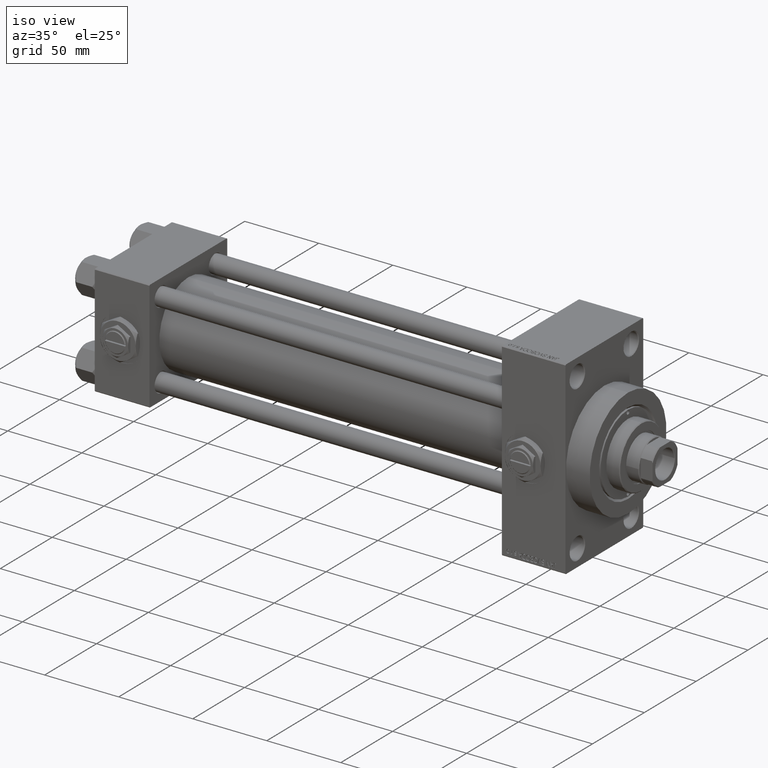
[diagram: clean part render]
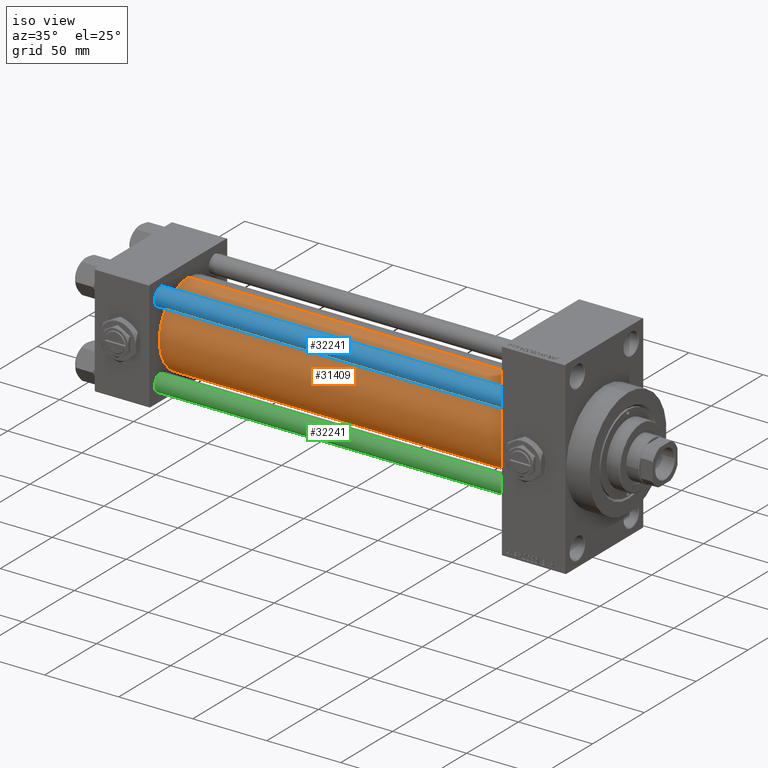
[diagram: same view with three faces highlighted in distinct colors, each labeled with its STEP entity id]
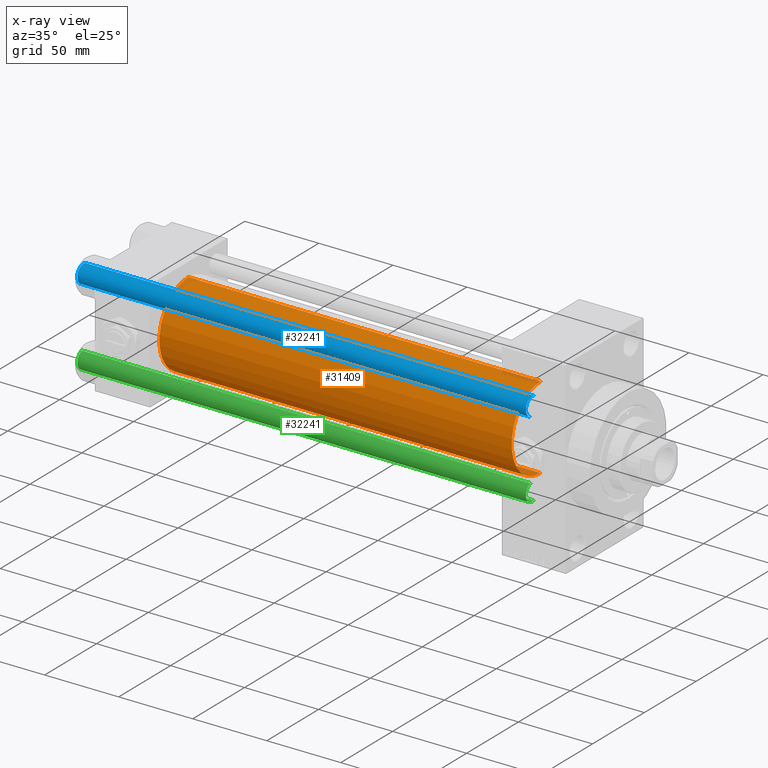
[diagram: x-ray of the same camera — body ghosted, the three highlighted faces saturated]
A machine part, iso view with three faces highlighted in distinct colors.
The next image is the same camera in x-ray (body ghosted, the three faces saturated) — at least one of them is partly hidden behind the body in this view.
Their STEP definitions:

[orange] entity #31409 — the highlighted cylindrical surface (partial cylindrical patch) has radius 28 mm, axis along (-1, -0, -0).
#3281 = CARTESIAN_POINT ( 'NONE',  ( 274.9999999999999432, 8.269258236473784371E-16, -28.00000000000000000 ) ) ;
#3526 = ORIENTED_EDGE ( 'NONE', *, *, #23756, .F. ) ;
#4028 = CARTESIAN_POINT ( 'NONE',  ( 274.9999999999999432, -2.602085213965210642E-15, 28.00000000000000000 ) ) ;
#4494 = LINE ( 'NONE', #40104, #48496 ) ;
#5468 = DIRECTION ( 'NONE',  ( 0.000000000000000000, 0.000000000000000000, 1.000000000000000000 ) ) ;
#7705 = CARTESIAN_POINT ( 'NONE',  ( 274.9999999999999432, -2.602085213965210642E-15, 28.00000000000000000 ) ) ;
#7950 = ORIENTED_EDGE ( 'NONE', *, *, #12488, .F. ) ;
#9122 = VERTEX_POINT ( 'NONE', #3281 ) ;
#12488 = EDGE_CURVE ( 'NONE', #9122, #24594, #4494, .T. ) ;
#12639 = CYLINDRICAL_SURFACE ( 'NONE', #30836, 28.00000000000000000 ) ;
#12697 = VERTEX_POINT ( 'NONE', #7705 ) ;
#12816 = CARTESIAN_POINT ( 'NONE',  ( 37.00000000000000711, -2.602085213965210642E-15, 0.000000000000000000 ) ) ;
#12817 = EDGE_CURVE ( 'NONE', #29416, #24594, #41125, .T. ) ;
#16282 = DIRECTION ( 'NONE',  ( -1.000000000000000000, -0.000000000000000000, -0.000000000000000000 ) ) ;
#19024 = AXIS2_PLACEMENT_3D ( 'NONE', #12816, #28428, #40233 ) ;
#19929 = VECTOR ( 'NONE', #34770, 1000.000000000000000 ) ;
#20837 = DIRECTION ( 'NONE',  ( -1.000000000000000000, -0.000000000000000000, -0.000000000000000000 ) ) ;
#21063 = EDGE_CURVE ( 'NONE', #12697, #29416, #31438, .T. ) ;
#23137 = CARTESIAN_POINT ( 'NONE',  ( 37.00000000000000711, -2.602085213965210642E-15, 28.00000000000000000 ) ) ;
#23756 = EDGE_CURVE ( 'NONE', #12697, #9122, #29855, .T. ) ;
#24594 = VERTEX_POINT ( 'NONE', #35510 ) ;
#26558 = AXIS2_PLACEMENT_3D ( 'NONE', #37547, #44501, #32441 ) ;
#28428 = DIRECTION ( 'NONE',  ( 1.000000000000000000, -0.000000000000000000, 0.000000000000000000 ) ) ;
#29258 = ORIENTED_EDGE ( 'NONE', *, *, #21063, .T. ) ;
#29416 = VERTEX_POINT ( 'NONE', #23137 ) ;
#29855 = CIRCLE ( 'NONE', #26558, 28.00000000000000000 ) ;
#30836 = AXIS2_PLACEMENT_3D ( 'NONE', #33106, #20837, #5468 ) ;
#31409 = ADVANCED_FACE ( 'NONE', ( #35941 ), #12639, .T. ) ;
#31438 = LINE ( 'NONE', #4028, #19929 ) ;
#32441 = DIRECTION ( 'NONE',  ( 0.000000000000000000, 0.000000000000000000, -1.000000000000000000 ) ) ;
#32946 = ORIENTED_EDGE ( 'NONE', *, *, #12817, .T. ) ;
#33106 = CARTESIAN_POINT ( 'NONE',  ( 274.9999999999999432, -2.602085213965210642E-15, 0.000000000000000000 ) ) ;
#34770 = DIRECTION ( 'NONE',  ( -1.000000000000000000, -0.000000000000000000, -0.000000000000000000 ) ) ;
#35510 = CARTESIAN_POINT ( 'NONE',  ( 37.00000000000000711, 8.269258236473784371E-16, -28.00000000000000000 ) ) ;
#35941 = FACE_OUTER_BOUND ( 'NONE', #41389, .T. ) ;
#37547 = CARTESIAN_POINT ( 'NONE',  ( 274.9999999999999432, -2.602085213965210642E-15, 0.000000000000000000 ) ) ;
#40104 = CARTESIAN_POINT ( 'NONE',  ( 274.9999999999999432, 8.269258236473784371E-16, -28.00000000000000000 ) ) ;
#40233 = DIRECTION ( 'NONE',  ( 0.000000000000000000, 0.000000000000000000, 1.000000000000000000 ) ) ;
#41125 = CIRCLE ( 'NONE', #19024, 28.00000000000000000 ) ;
#41389 = EDGE_LOOP ( 'NONE', ( #7950, #3526, #29258, #32946 ) ) ;
#44501 = DIRECTION ( 'NONE',  ( 1.000000000000000000, 0.000000000000000000, 0.000000000000000000 ) ) ;
#48496 = VECTOR ( 'NONE', #16282, 1000.000000000000000 ) ;

[blue] entity #32241 — the highlighted cylindrical surface (edge-blend (fillet) strip) has radius 6 mm, axis along (1, 0, 0).
#657 = AXIS2_PLACEMENT_3D ( 'NONE', #37585, #18118, #29134 ) ;
#2504 = FACE_OUTER_BOUND ( 'NONE', #6739, .T. ) ;
#3654 = DIRECTION ( 'NONE',  ( 1.000000000000000000, 0.000000000000000000, 0.000000000000000000 ) ) ;
#4289 = EDGE_CURVE ( 'NONE', #7121, #8155, #31587, .T. ) ;
#6739 = EDGE_LOOP ( 'NONE', ( #43879, #10469, #28497, #43720 ) ) ;
#7121 = VERTEX_POINT ( 'NONE', #15138 ) ;
#8155 = VERTEX_POINT ( 'NONE', #21409 ) ;
#9561 = LINE ( 'NONE', #49297, #25657 ) ;
#10469 = ORIENTED_EDGE ( 'NONE', *, *, #48868, .T. ) ;
#12284 = CARTESIAN_POINT ( 'NONE',  ( 0.000000000000000000, 0.000000000000000000, 303.5000000000000000 ) ) ;
#15138 = CARTESIAN_POINT ( 'NONE',  ( -6.000000000000000888, 0.000000000000000000, 303.5000000000000000 ) ) ;
#16327 = CIRCLE ( 'NONE', #25300, 6.000000000000000888 ) ;
#17089 = VECTOR ( 'NONE', #24142, 1000.000000000000000 ) ;
#18118 = DIRECTION ( 'NONE',  ( -0.000000000000000000, -0.000000000000000000, -1.000000000000000000 ) ) ;
#19051 = VERTEX_POINT ( 'NONE', #35701 ) ;
#21409 = CARTESIAN_POINT ( 'NONE',  ( -6.000000000000000888, 0.000000000000000000, 0.4999999999999449329 ) ) ;
#24060 = DIRECTION ( 'NONE',  ( 1.000000000000000000, 0.000000000000000000, 0.000000000000000000 ) ) ;
#24142 = DIRECTION ( 'NONE',  ( -0.000000000000000000, -0.000000000000000000, -1.000000000000000000 ) ) ;
#25143 = VERTEX_POINT ( 'NONE', #50547 ) ;
#25300 = AXIS2_PLACEMENT_3D ( 'NONE', #39527, #35409, #3654 ) ;
#25657 = VECTOR ( 'NONE', #44931, 1000.000000000000000 ) ;
#27904 = DIRECTION ( 'NONE',  ( 0.000000000000000000, 0.000000000000000000, -1.000000000000000000 ) ) ;
#28497 = ORIENTED_EDGE ( 'NONE', *, *, #36147, .T. ) ;
#29134 = DIRECTION ( 'NONE',  ( -1.000000000000000000, 0.000000000000000000, 0.000000000000000000 ) ) ;
#31587 = LINE ( 'NONE', #31834, #17089 ) ;
#31834 = CARTESIAN_POINT ( 'NONE',  ( -6.000000000000000888, 0.000000000000000000, 304.0000000000000000 ) ) ;
#32241 = ADVANCED_FACE ( 'NONE', ( #2504 ), #44536, .T. ) ;
#33468 = AXIS2_PLACEMENT_3D ( 'NONE', #12284, #27904, #24060 ) ;
#35409 = DIRECTION ( 'NONE',  ( -0.000000000000000000, -0.000000000000000000, 1.000000000000000000 ) ) ;
#35701 = CARTESIAN_POINT ( 'NONE',  ( 6.000000000000000888, 7.347880794884120722E-16, 0.4999999999999449329 ) ) ;
#36147 = EDGE_CURVE ( 'NONE', #19051, #8155, #16327, .T. ) ;
#36675 = EDGE_CURVE ( 'NONE', #7121, #25143, #46593, .T. ) ;
#37585 = CARTESIAN_POINT ( 'NONE',  ( 0.000000000000000000, 0.000000000000000000, 304.0000000000000000 ) ) ;
#39527 = CARTESIAN_POINT ( 'NONE',  ( 0.000000000000000000, 0.000000000000000000, 0.4999999999999449329 ) ) ;
#43720 = ORIENTED_EDGE ( 'NONE', *, *, #4289, .F. ) ;
#43879 = ORIENTED_EDGE ( 'NONE', *, *, #36675, .T. ) ;
#44536 = CYLINDRICAL_SURFACE ( 'NONE', #657, 6.000000000000000888 ) ;
#44931 = DIRECTION ( 'NONE',  ( -0.000000000000000000, -0.000000000000000000, -1.000000000000000000 ) ) ;
#46593 = CIRCLE ( 'NONE', #33468, 6.000000000000000888 ) ;
#48868 = EDGE_CURVE ( 'NONE', #25143, #19051, #9561, .T. ) ;
#49297 = CARTESIAN_POINT ( 'NONE',  ( 6.000000000000000888, 7.347880794884120722E-16, 304.0000000000000000 ) ) ;
#50547 = CARTESIAN_POINT ( 'NONE',  ( 6.000000000000000888, 7.347880794884120722E-16, 303.5000000000000000 ) ) ;

[green] entity #32241 — the highlighted cylindrical surface (edge-blend (fillet) strip) has radius 6 mm, axis along (-1, 0, 0).
#657 = AXIS2_PLACEMENT_3D ( 'NONE', #37585, #18118, #29134 ) ;
#2504 = FACE_OUTER_BOUND ( 'NONE', #6739, .T. ) ;
#3654 = DIRECTION ( 'NONE',  ( 1.000000000000000000, 0.000000000000000000, 0.000000000000000000 ) ) ;
#4289 = EDGE_CURVE ( 'NONE', #7121, #8155, #31587, .T. ) ;
#6739 = EDGE_LOOP ( 'NONE', ( #43879, #10469, #28497, #43720 ) ) ;
#7121 = VERTEX_POINT ( 'NONE', #15138 ) ;
#8155 = VERTEX_POINT ( 'NONE', #21409 ) ;
#9561 = LINE ( 'NONE', #49297, #25657 ) ;
#10469 = ORIENTED_EDGE ( 'NONE', *, *, #48868, .T. ) ;
#12284 = CARTESIAN_POINT ( 'NONE',  ( 0.000000000000000000, 0.000000000000000000, 303.5000000000000000 ) ) ;
#15138 = CARTESIAN_POINT ( 'NONE',  ( -6.000000000000000888, 0.000000000000000000, 303.5000000000000000 ) ) ;
#16327 = CIRCLE ( 'NONE', #25300, 6.000000000000000888 ) ;
#17089 = VECTOR ( 'NONE', #24142, 1000.000000000000000 ) ;
#18118 = DIRECTION ( 'NONE',  ( -0.000000000000000000, -0.000000000000000000, -1.000000000000000000 ) ) ;
#19051 = VERTEX_POINT ( 'NONE', #35701 ) ;
#21409 = CARTESIAN_POINT ( 'NONE',  ( -6.000000000000000888, 0.000000000000000000, 0.4999999999999449329 ) ) ;
#24060 = DIRECTION ( 'NONE',  ( 1.000000000000000000, 0.000000000000000000, 0.000000000000000000 ) ) ;
#24142 = DIRECTION ( 'NONE',  ( -0.000000000000000000, -0.000000000000000000, -1.000000000000000000 ) ) ;
#25143 = VERTEX_POINT ( 'NONE', #50547 ) ;
#25300 = AXIS2_PLACEMENT_3D ( 'NONE', #39527, #35409, #3654 ) ;
#25657 = VECTOR ( 'NONE', #44931, 1000.000000000000000 ) ;
#27904 = DIRECTION ( 'NONE',  ( 0.000000000000000000, 0.000000000000000000, -1.000000000000000000 ) ) ;
#28497 = ORIENTED_EDGE ( 'NONE', *, *, #36147, .T. ) ;
#29134 = DIRECTION ( 'NONE',  ( -1.000000000000000000, 0.000000000000000000, 0.000000000000000000 ) ) ;
#31587 = LINE ( 'NONE', #31834, #17089 ) ;
#31834 = CARTESIAN_POINT ( 'NONE',  ( -6.000000000000000888, 0.000000000000000000, 304.0000000000000000 ) ) ;
#32241 = ADVANCED_FACE ( 'NONE', ( #2504 ), #44536, .T. ) ;
#33468 = AXIS2_PLACEMENT_3D ( 'NONE', #12284, #27904, #24060 ) ;
#35409 = DIRECTION ( 'NONE',  ( -0.000000000000000000, -0.000000000000000000, 1.000000000000000000 ) ) ;
#35701 = CARTESIAN_POINT ( 'NONE',  ( 6.000000000000000888, 7.347880794884120722E-16, 0.4999999999999449329 ) ) ;
#36147 = EDGE_CURVE ( 'NONE', #19051, #8155, #16327, .T. ) ;
#36675 = EDGE_CURVE ( 'NONE', #7121, #25143, #46593, .T. ) ;
#37585 = CARTESIAN_POINT ( 'NONE',  ( 0.000000000000000000, 0.000000000000000000, 304.0000000000000000 ) ) ;
#39527 = CARTESIAN_POINT ( 'NONE',  ( 0.000000000000000000, 0.000000000000000000, 0.4999999999999449329 ) ) ;
#43720 = ORIENTED_EDGE ( 'NONE', *, *, #4289, .F. ) ;
#43879 = ORIENTED_EDGE ( 'NONE', *, *, #36675, .T. ) ;
#44536 = CYLINDRICAL_SURFACE ( 'NONE', #657, 6.000000000000000888 ) ;
#44931 = DIRECTION ( 'NONE',  ( -0.000000000000000000, -0.000000000000000000, -1.000000000000000000 ) ) ;
#46593 = CIRCLE ( 'NONE', #33468, 6.000000000000000888 ) ;
#48868 = EDGE_CURVE ( 'NONE', #25143, #19051, #9561, .T. ) ;
#49297 = CARTESIAN_POINT ( 'NONE',  ( 6.000000000000000888, 7.347880794884120722E-16, 304.0000000000000000 ) ) ;
#50547 = CARTESIAN_POINT ( 'NONE',  ( 6.000000000000000888, 7.347880794884120722E-16, 303.5000000000000000 ) ) ;